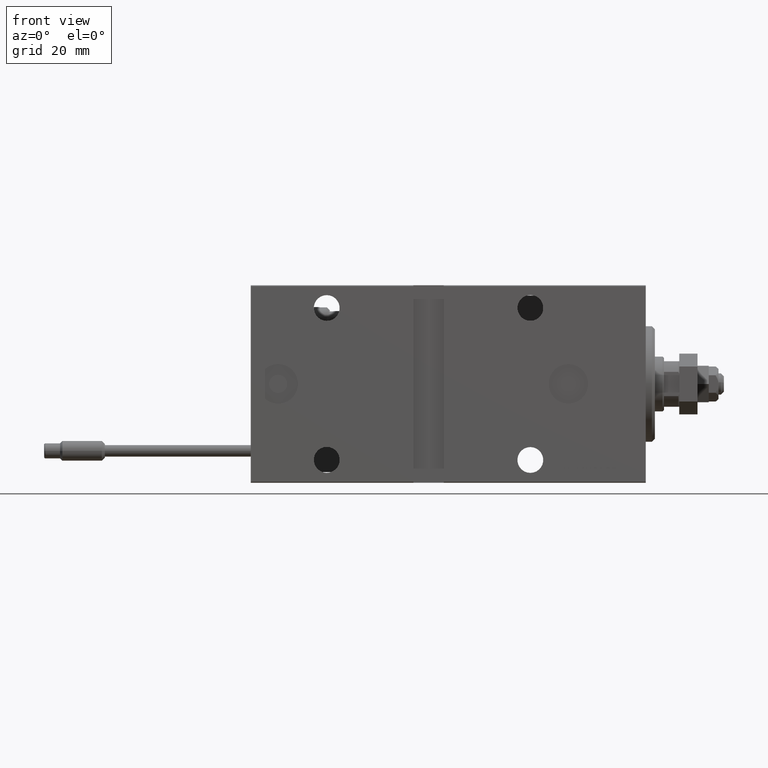
[diagram: clean part render]
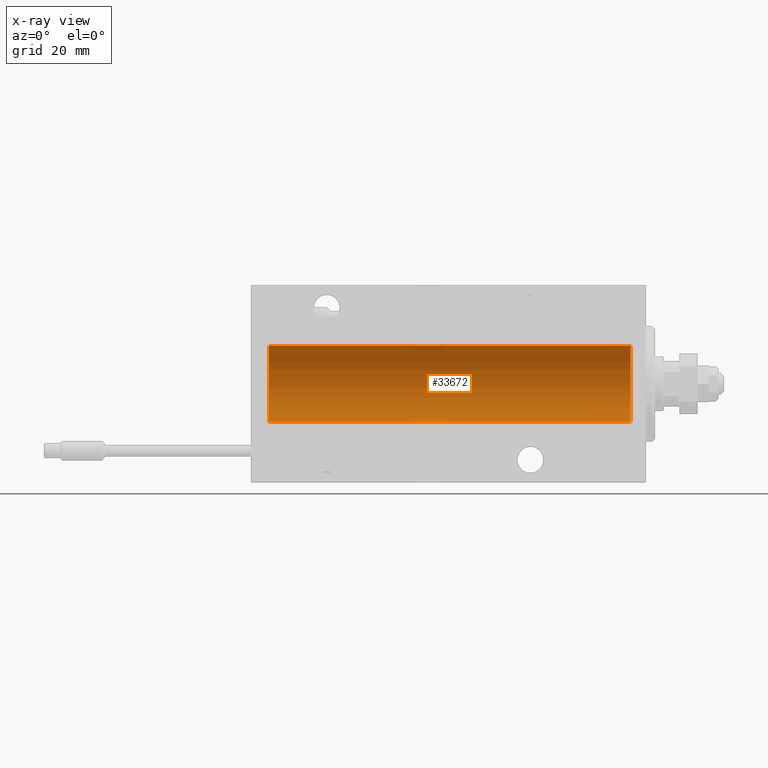
[diagram: x-ray — body ghosted, one internal face saturated and labeled with its STEP entity id]
A machine part, front view, then the same camera in x-ray: the body is ghosted and one INTERNAL B-rep face — a face not visible from any outside direction — is saturated and labeled: STEP entity #33672.
In plain terms, the highlighted cylindrical surface (partial cylindrical patch) has radius 12.5 mm, axis along (1, 0, -0).
Its self-contained STEP definition (entity closure, byte-faithful):
#1215 = DIRECTION ( 'NONE',  ( 0.000000000000000000, 0.000000000000000000, 1.000000000000000000 ) ) ;
#2976 = CARTESIAN_POINT ( 'NONE',  ( 124.0000000000000000, 0.000000000000000000, 12.50000000000000000 ) ) ;
#3559 = ORIENTED_EDGE ( 'NONE', *, *, #40787, .F. ) ;
#7583 = ORIENTED_EDGE ( 'NONE', *, *, #30925, .T. ) ;
#7633 = CIRCLE ( 'NONE', #17401, 12.50000000000000000 ) ;
#7863 = AXIS2_PLACEMENT_3D ( 'NONE', #13970, #28934, #17044 ) ;
#9425 = DIRECTION ( 'NONE',  ( 0.000000000000000000, 0.000000000000000000, 1.000000000000000000 ) ) ;
#9993 = VERTEX_POINT ( 'NONE', #18295 ) ;
#11021 = CIRCLE ( 'NONE', #19948, 12.50000000000000000 ) ;
#11796 = VERTEX_POINT ( 'NONE', #40262 ) ;
#12922 = CARTESIAN_POINT ( 'NONE',  ( 124.0000000000000000, 1.530808498934191521E-15, -12.50000000000000000 ) ) ;
#13658 = VERTEX_POINT ( 'NONE', #12922 ) ;
#13783 = DIRECTION ( 'NONE',  ( -1.000000000000000000, -0.000000000000000000, -0.000000000000000000 ) ) ;
#13970 = CARTESIAN_POINT ( 'NONE',  ( 124.0000000000000000, 0.000000000000000000, 0.000000000000000000 ) ) ;
#14655 = ORIENTED_EDGE ( 'NONE', *, *, #39179, .F. ) ;
#16783 = DIRECTION ( 'NONE',  ( -1.000000000000000000, 0.000000000000000000, 0.000000000000000000 ) ) ;
#17044 = DIRECTION ( 'NONE',  ( 0.000000000000000000, 0.000000000000000000, 1.000000000000000000 ) ) ;
#17401 = AXIS2_PLACEMENT_3D ( 'NONE', #31913, #46612, #1215 ) ;
#18295 = CARTESIAN_POINT ( 'NONE',  ( 5.000000000000004441, 0.000000000000000000, 12.50000000000000000 ) ) ;
#19948 = AXIS2_PLACEMENT_3D ( 'NONE', #40615, #16783, #9425 ) ;
#25825 = LINE ( 'NONE', #2976, #47400 ) ;
#25905 = EDGE_LOOP ( 'NONE', ( #14655, #48243, #7583, #3559 ) ) ;
#26313 = DIRECTION ( 'NONE',  ( -1.000000000000000000, -0.000000000000000000, -0.000000000000000000 ) ) ;
#27371 = VECTOR ( 'NONE', #13783, 1000.000000000000000 ) ;
#28600 = CARTESIAN_POINT ( 'NONE',  ( 5.000000000000004441, 1.530808498934191521E-15, -12.50000000000000000 ) ) ;
#28934 = DIRECTION ( 'NONE',  ( -1.000000000000000000, -0.000000000000000000, -0.000000000000000000 ) ) ;
#29187 = FACE_OUTER_BOUND ( 'NONE', #25905, .T. ) ;
#29422 = CYLINDRICAL_SURFACE ( 'NONE', #7863, 12.50000000000000000 ) ;
#30925 = EDGE_CURVE ( 'NONE', #45896, #9993, #11021, .T. ) ;
#31913 = CARTESIAN_POINT ( 'NONE',  ( 124.0000000000000000, 0.000000000000000000, 0.000000000000000000 ) ) ;
#33672 = ADVANCED_FACE ( 'NONE', ( #29187 ), #29422, .F. ) ;
#36609 = LINE ( 'NONE', #41402, #27371 ) ;
#39179 = EDGE_CURVE ( 'NONE', #13658, #11796, #7633, .T. ) ;
#40262 = CARTESIAN_POINT ( 'NONE',  ( 124.0000000000000000, 0.000000000000000000, 12.50000000000000000 ) ) ;
#40615 = CARTESIAN_POINT ( 'NONE',  ( 5.000000000000004441, 0.000000000000000000, 0.000000000000000000 ) ) ;
#40787 = EDGE_CURVE ( 'NONE', #11796, #9993, #25825, .T. ) ;
#41402 = CARTESIAN_POINT ( 'NONE',  ( 124.0000000000000000, 1.530808498934191521E-15, -12.50000000000000000 ) ) ;
#45896 = VERTEX_POINT ( 'NONE', #28600 ) ;
#46612 = DIRECTION ( 'NONE',  ( -1.000000000000000000, 0.000000000000000000, 0.000000000000000000 ) ) ;
#47400 = VECTOR ( 'NONE', #26313, 1000.000000000000000 ) ;
#47598 = EDGE_CURVE ( 'NONE', #13658, #45896, #36609, .T. ) ;
#48243 = ORIENTED_EDGE ( 'NONE', *, *, #47598, .T. ) ;